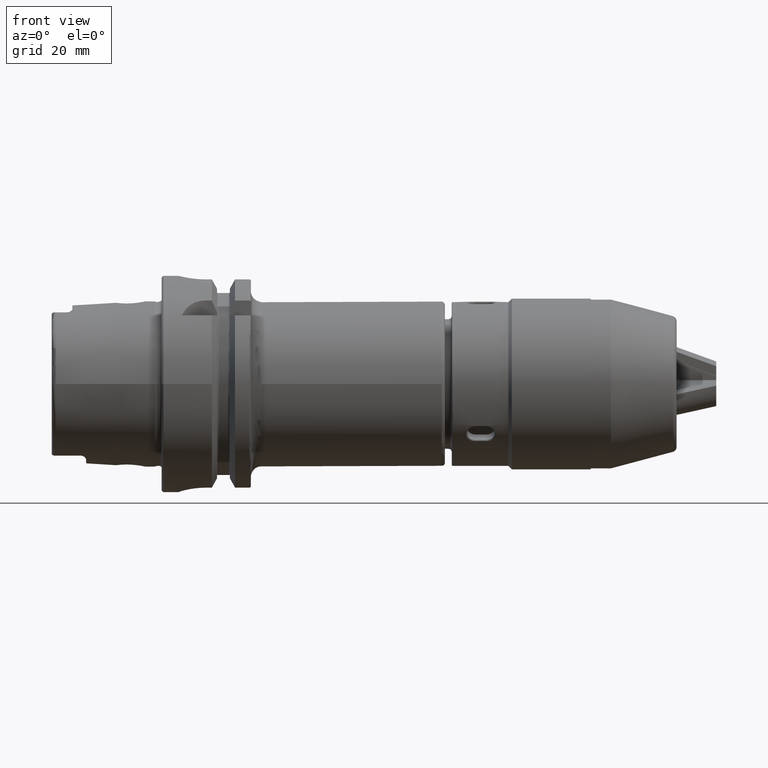
[diagram: clean part render]
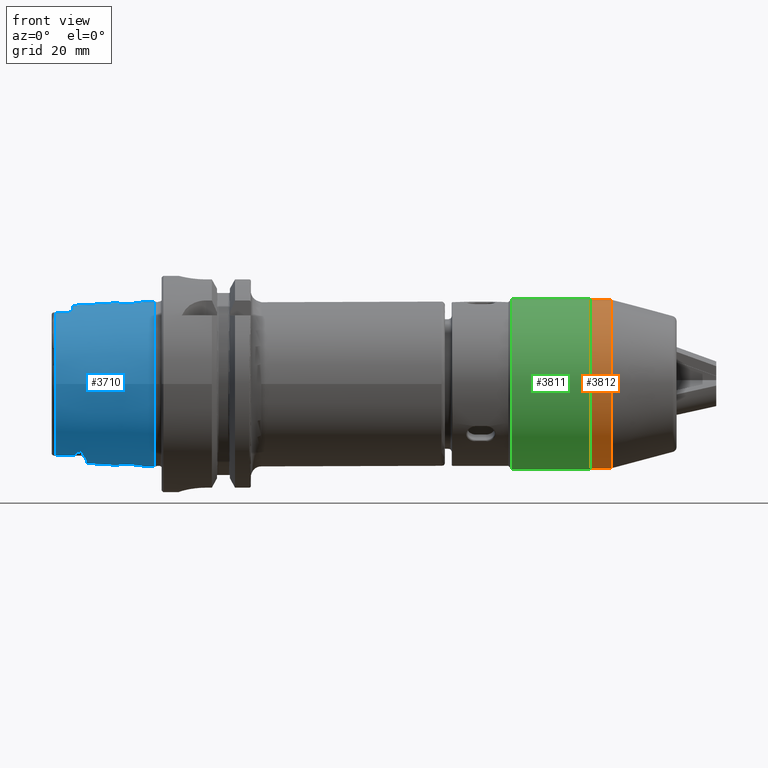
[diagram: same view with three faces highlighted in distinct colors, each labeled with its STEP entity id]
A machine part, front view with three faces highlighted in distinct colors.
Their STEP definitions:

[orange] entity #3812 — the highlighted cylindrical surface (bore or boss wall) has radius 24.7 mm, axis along (-1, -0, -0).
#174=CYLINDRICAL_SURFACE('',#4386,24.7);
#307=LINE('',#7338,#542);
#542=VECTOR('',#5308,24.7);
#890=FACE_OUTER_BOUND('',#1112,.T.);
#1112=EDGE_LOOP('',(#3256,#3257,#3258,#3259,#3260,#3261));
#1460=CIRCLE('',#4387,24.7);
#1461=CIRCLE('',#4388,24.7);
#1462=CIRCLE('',#4389,24.7);
#1463=CIRCLE('',#4390,24.7);
#1780=VERTEX_POINT('',#7333);
#1781=VERTEX_POINT('',#7334);
#1782=VERTEX_POINT('',#7337);
#1783=VERTEX_POINT('',#7339);
#2295=EDGE_CURVE('',#1780,#1781,#1460,.T.);
#2296=EDGE_CURVE('',#1781,#1780,#1461,.T.);
#2297=EDGE_CURVE('',#1781,#1782,#307,.T.);
#2298=EDGE_CURVE('',#1782,#1783,#1462,.T.);
#2299=EDGE_CURVE('',#1783,#1782,#1463,.T.);
#3256=ORIENTED_EDGE('',*,*,#2295,.F.);
#3257=ORIENTED_EDGE('',*,*,#2296,.F.);
#3258=ORIENTED_EDGE('',*,*,#2297,.T.);
#3259=ORIENTED_EDGE('',*,*,#2298,.T.);
#3260=ORIENTED_EDGE('',*,*,#2299,.T.);
#3261=ORIENTED_EDGE('',*,*,#2297,.F.);
#3812=ADVANCED_FACE('',(#890),#174,.T.);
#4386=AXIS2_PLACEMENT_3D('',#7332,#5302,#5303);
#4387=AXIS2_PLACEMENT_3D('',#7335,#5304,#5305);
#4388=AXIS2_PLACEMENT_3D('',#7336,#5306,#5307);
#4389=AXIS2_PLACEMENT_3D('',#7340,#5309,#5310);
#4390=AXIS2_PLACEMENT_3D('',#7341,#5311,#5312);
#5302=DIRECTION('center_axis',(9.33664374448044E-21,-1.,-2.19361169022002E-20));
#5303=DIRECTION('ref_axis',(4.32986979603811E-15,2.19361169022003E-20,-1.));
#5304=DIRECTION('center_axis',(9.33664374448044E-21,-1.,-2.19361169022002E-20));
#5305=DIRECTION('ref_axis',(4.32986979603811E-15,2.19361169022003E-20,-1.));
#5306=DIRECTION('center_axis',(9.33664374448044E-21,-1.,-2.19361169022002E-20));
#5307=DIRECTION('ref_axis',(4.32986979603811E-15,2.19361169022003E-20,-1.));
#5308=DIRECTION('',(-9.33664374448044E-21,1.,2.19361169022002E-20));
#5309=DIRECTION('center_axis',(9.33664374448044E-21,-1.,-2.19361169022002E-20));
#5310=DIRECTION('ref_axis',(4.32986979603811E-15,2.19361169022003E-20,-1.));
#5311=DIRECTION('center_axis',(9.33664374448044E-21,-1.,-2.19361169022002E-20));
#5312=DIRECTION('ref_axis',(4.32986979603811E-15,2.19361169022003E-20,-1.));
#7332=CARTESIAN_POINT('Origin',(0.,0.,0.));
#7333=CARTESIAN_POINT('',(1.06947559882691E-13,24.,-24.7));
#7334=CARTESIAN_POINT('',(-1.09972885635485E-13,24.,24.7));
#7335=CARTESIAN_POINT('Origin',(-2.24079450041367E-19,24.,5.26466805653975E-19));
#7336=CARTESIAN_POINT('Origin',(-2.24079450041367E-19,24.,5.26466805653975E-19));
#7337=CARTESIAN_POINT('',(-1.09972940721683E-13,29.9,24.7));
#7338=CARTESIAN_POINT('',(-1.09972661556035E-13,-5.41822087484347E-19,24.7));
#7339=CARTESIAN_POINT('',(1.06947504796493E-13,29.9,-24.7));
#7340=CARTESIAN_POINT('Origin',(-2.79165648036739E-19,29.9,6.55889895421925E-19));
#7341=CARTESIAN_POINT('Origin',(-2.79165648036739E-19,29.9,6.55889895421925E-19));

[blue] entity #3710 — the highlighted conical surface has half-angle 2.868 deg.
#70=(
BOUNDED_CURVE()
B_SPLINE_CURVE(2,(#6161,#6162,#6163),.UNSPECIFIED.,.F.,.F.)
B_SPLINE_CURVE_WITH_KNOTS((3,3),(0.409626932432081,0.704053423593105),
 .UNSPECIFIED.)
CURVE()
GEOMETRIC_REPRESENTATION_ITEM()
RATIONAL_B_SPLINE_CURVE((1.00336468859939,1.00336468859939,1.00162640098087))
REPRESENTATION_ITEM('')
);
#71=(
BOUNDED_CURVE()
B_SPLINE_CURVE(2,(#6228,#6229,#6230),.UNSPECIFIED.,.F.,.F.)
B_SPLINE_CURVE_WITH_KNOTS((3,3),(0.115200441271059,0.409626932432082),
 .UNSPECIFIED.)
CURVE()
GEOMETRIC_REPRESENTATION_ITEM()
RATIONAL_B_SPLINE_CURVE((1.00162640098087,1.00336468859939,1.00336468859939))
REPRESENTATION_ITEM('')
);
#101=CONICAL_SURFACE('',#4146,23.4974838444284,0.0500583457465973);
#123=FACE_BOUND('',#1003,.T.);
#124=FACE_BOUND('',#1004,.T.);
#224=LINE('',#6138,#459);
#459=VECTOR('',#4745,23.4974838444284);
#788=FACE_OUTER_BOUND('',#1002,.T.);
#1002=EDGE_LOOP('',(#2651,#2652,#2653,#2654,#2655,#2656,#2657,#2658,#2659,
#2660,#2661,#2662,#2663,#2664,#2665,#2666,#2667,#2668,#2669,#2670,#2671));
#1003=EDGE_LOOP('',(#2672));
#1004=EDGE_LOOP('',(#2673));
#1201=B_SPLINE_CURVE_WITH_KNOTS('',3,(#5900,#5901,#5902,#5903,#5904,#5905,
#5906,#5907,#5908,#5909,#5910,#5911,#5912,#5913,#5914,#5915,#5916,#5917),
 .UNSPECIFIED.,.F.,.F.,(4,2,2,2,2,2,2,2,4),(1.51539778880184,1.52261182847659,
1.52982586815134,1.54425394750083,1.60399250706955,1.66373106663827,1.83461413050895,
2.00549719437962,2.0934503680651),.UNSPECIFIED.);
#1203=B_SPLINE_CURVE_WITH_KNOTS('',3,(#5948,#5949,#5950,#5951,#5952,#5953,
#5954,#5955),.UNSPECIFIED.,.F.,.F.,(4,2,2,4),(1.77153596711132,1.83492838643131,
2.00584149209106,2.09371558288111),.UNSPECIFIED.);
#1204=B_SPLINE_CURVE_WITH_KNOTS('',3,(#5972,#5973,#5974,#5975,#5976,#5977,
#5978,#5979),.UNSPECIFIED.,.F.,.F.,(4,2,2,4),(0.937604543168422,1.02547863395848,
1.19639173961822,1.25978415893822),.UNSPECIFIED.);
#1208=B_SPLINE_CURVE_WITH_KNOTS('',3,(#6111,#6112,#6113,#6114,#6115,#6116,
#6117,#6118,#6119,#6120,#6121,#6122,#6123,#6124,#6125,#6126,#6127,#6128,
#6129,#6130,#6131),.UNSPECIFIED.,.T.,.F.,(4,1,1,1,1,1,1,1,1,1,1,1,1,1,1,
1,1,1,4),(-2.26557970640445,-2.10375258451842,-1.94192546263239,-1.86101190168937,
-1.78009834074636,-1.61827121886032,-1.45644409697429,-1.29461697508826,
-1.18673222716424,-1.07884747924022,-1.0249051052782,-0.970962731316194,
-0.755193235468151,-0.647308487544129,-0.485481365658097,-0.404567804715081,
-0.323654243772065,-0.161827121886032,0.),.UNSPECIFIED.);
#1209=B_SPLINE_CURVE_WITH_KNOTS('',3,(#6142,#6143,#6144,#6145,#6146,#6147,
#6148,#6149,#6150,#6151,#6152,#6153,#6154,#6155,#6156,#6157,#6158,#6159),
 .UNSPECIFIED.,.F.,.F.,(4,2,2,2,2,2,2,2,4),(0.937345209538582,1.02529838322405,
1.19618144709472,1.36706451096539,1.42680307053412,1.48654163010284,1.50096970945234,
1.50818374912708,1.51539778880183),.UNSPECIFIED.);
#1210=B_SPLINE_CURVE_WITH_KNOTS('',3,(#6165,#6166,#6167,#6168,#6169,#6170,
#6171,#6172,#6173,#6174,#6175,#6176,#6177,#6178,#6179,#6180,#6181,#6182),
 .UNSPECIFIED.,.F.,.F.,(4,2,2,2,2,2,2,2,4),(0.,0.0903555875079969,0.135533381261995,
0.180711175015994,0.191679253692351,0.19716329303053,0.202647332368709,
0.208141673454593,0.210684760739668),.UNSPECIFIED.);
#1211=B_SPLINE_CURVE_WITH_KNOTS('',3,(#6184,#6185,#6186,#6187,#6188,#6189,
#6190,#6191,#6192,#6193),.UNSPECIFIED.,.F.,.F.,(4,2,2,2,4),(0.278659319230644,
0.333918541832918,0.442805459609059,0.482035165304725,0.500954004489182),
 .UNSPECIFIED.);
#1212=B_SPLINE_CURVE_WITH_KNOTS('',3,(#6197,#6198,#6199,#6200,#6201,#6202,
#6203,#6204,#6205,#6206,#6207,#6208),.UNSPECIFIED.,.F.,.F.,(4,2,2,2,2,4),
(0.500954004487676,0.50386398744684,0.528331134037123,0.580812359186529,
0.712749669755937,0.726249722962502),.UNSPECIFIED.);
#1213=B_SPLINE_CURVE_WITH_KNOTS('',3,(#6210,#6211,#6212,#6213,#6214,#6215,
#6216,#6217,#6218,#6219,#6220,#6221,#6222,#6223,#6224,#6225,#6226,#6227),
 .UNSPECIFIED.,.F.,.F.,(4,2,2,2,2,2,2,2,4),(0.599581967500703,0.602125054785784,
0.607619395871668,0.613103435209847,0.618587474548027,0.629555553224386,
0.674733346978385,0.719911140732385,0.810266728240384),.UNSPECIFIED.);
#1214=B_SPLINE_CURVE_WITH_KNOTS('',3,(#6233,#6234,#6235,#6236,#6237,#6238,
#6239,#6240,#6241,#6242,#6243,#6244,#6245,#6246),.UNSPECIFIED.,.F.,.F.,
(4,2,2,2,2,2,4),(0.612787130114313,0.692070205833102,0.846913877835571,
0.923866042650838,0.97973233720279,1.02631946127952,1.05465853457734),
 .UNSPECIFIED.);
#1215=B_SPLINE_CURVE_WITH_KNOTS('',3,(#6249,#6250,#6251,#6252,#6253,#6254,
#6255,#6256,#6257,#6258,#6259,#6260,#6261,#6262),.UNSPECIFIED.,.F.,.F.,
(4,2,2,2,2,2,4),(0.413162960284885,0.443293122422243,0.485069563612126,
0.532728756474865,0.604908335246701,0.737193690325506,0.813919818316776),
 .UNSPECIFIED.);
#1216=B_SPLINE_CURVE_WITH_KNOTS('',3,(#6265,#6266,#6267,#6268,#6269,#6270,
#6271,#6272,#6273,#6274,#6275,#6276,#6277,#6278,#6279,#6280,#6281,#6282,
#6283,#6284),.UNSPECIFIED.,.T.,.F.,(4,1,1,1,1,1,1,1,1,1,1,1,1,1,1,1,1,4),
(-2.26557970640445,-2.10375258451842,-1.94192546263239,-1.78009834074636,
-1.61827121886032,-1.45644409697429,-1.37553053603127,-1.29461697508826,
-1.18673222716424,-1.07884747924022,-0.970962731316194,-0.755193235468151,
-0.647308487544129,-0.485481365658097,-0.404567804715081,-0.323654243772065,
-0.161827121886032,0.),.UNSPECIFIED.);
#1324=CIRCLE('',#4147,24.2204308617234);
#1325=CIRCLE('',#4148,24.2204308617234);
#1326=CIRCLE('',#4149,22.7745368271334);
#1327=CIRCLE('',#4150,23.2184268537074);
#1328=CIRCLE('',#4151,22.7745368271334);
#1329=CIRCLE('',#4152,23.0180260521042);
#1330=CIRCLE('',#4153,22.7745368271334);
#1576=VERTEX_POINT('',#5886);
#1577=VERTEX_POINT('',#5899);
#1583=VERTEX_POINT('',#5934);
#1584=VERTEX_POINT('',#5947);
#1590=VERTEX_POINT('',#5969);
#1591=VERTEX_POINT('',#5971);
#1594=VERTEX_POINT('',#6082);
#1597=VERTEX_POINT('',#6133);
#1598=VERTEX_POINT('',#6134);
#1599=VERTEX_POINT('',#6137);
#1600=VERTEX_POINT('',#6139);
#1601=VERTEX_POINT('',#6141);
#1602=VERTEX_POINT('',#6160);
#1603=VERTEX_POINT('',#6164);
#1604=VERTEX_POINT('',#6183);
#1605=VERTEX_POINT('',#6194);
#1606=VERTEX_POINT('',#6196);
#1607=VERTEX_POINT('',#6209);
#1608=VERTEX_POINT('',#6232);
#1609=VERTEX_POINT('',#6247);
#1610=VERTEX_POINT('',#6264);
#1986=EDGE_CURVE('',#1577,#1576,#1201,.T.);
#1996=EDGE_CURVE('',#1584,#1583,#1203,.T.);
#2004=EDGE_CURVE('',#1591,#1590,#1204,.T.);
#2012=EDGE_CURVE('',#1594,#1594,#1208,.T.);
#2013=EDGE_CURVE('',#1597,#1598,#1324,.T.);
#2014=EDGE_CURVE('',#1598,#1597,#1325,.T.);
#2015=EDGE_CURVE('',#1598,#1599,#224,.T.);
#2016=EDGE_CURVE('',#1599,#1600,#1326,.T.);
#2017=EDGE_CURVE('',#1600,#1601,#1209,.T.);
#2018=EDGE_CURVE('',#1601,#1602,#70,.T.);
#2019=EDGE_CURVE('',#1603,#1602,#1210,.T.);
#2020=EDGE_CURVE('',#1604,#1603,#1211,.T.);
#2021=EDGE_CURVE('',#1604,#1605,#1327,.T.);
#2022=EDGE_CURVE('',#1606,#1605,#1212,.T.);
#2023=EDGE_CURVE('',#1607,#1606,#1213,.T.);
#2024=EDGE_CURVE('',#1607,#1577,#71,.T.);
#2025=EDGE_CURVE('',#1576,#1591,#1328,.T.);
#2026=EDGE_CURVE('',#1608,#1590,#1214,.T.);
#2027=EDGE_CURVE('',#1608,#1609,#1329,.T.);
#2028=EDGE_CURVE('',#1584,#1609,#1215,.T.);
#2029=EDGE_CURVE('',#1583,#1599,#1330,.T.);
#2030=EDGE_CURVE('',#1610,#1610,#1216,.T.);
#2651=ORIENTED_EDGE('',*,*,#2013,.F.);
#2652=ORIENTED_EDGE('',*,*,#2014,.F.);
#2653=ORIENTED_EDGE('',*,*,#2015,.T.);
#2654=ORIENTED_EDGE('',*,*,#2016,.T.);
#2655=ORIENTED_EDGE('',*,*,#2017,.T.);
#2656=ORIENTED_EDGE('',*,*,#2018,.T.);
#2657=ORIENTED_EDGE('',*,*,#2019,.F.);
#2658=ORIENTED_EDGE('',*,*,#2020,.F.);
#2659=ORIENTED_EDGE('',*,*,#2021,.T.);
#2660=ORIENTED_EDGE('',*,*,#2022,.F.);
#2661=ORIENTED_EDGE('',*,*,#2023,.F.);
#2662=ORIENTED_EDGE('',*,*,#2024,.T.);
#2663=ORIENTED_EDGE('',*,*,#1986,.T.);
#2664=ORIENTED_EDGE('',*,*,#2025,.T.);
#2665=ORIENTED_EDGE('',*,*,#2004,.T.);
#2666=ORIENTED_EDGE('',*,*,#2026,.F.);
#2667=ORIENTED_EDGE('',*,*,#2027,.T.);
#2668=ORIENTED_EDGE('',*,*,#2028,.F.);
#2669=ORIENTED_EDGE('',*,*,#1996,.T.);
#2670=ORIENTED_EDGE('',*,*,#2029,.T.);
#2671=ORIENTED_EDGE('',*,*,#2015,.F.);
#2672=ORIENTED_EDGE('',*,*,#2030,.F.);
#2673=ORIENTED_EDGE('',*,*,#2012,.F.);
#3710=ADVANCED_FACE('',(#788,#123,#124),#101,.T.);
#4146=AXIS2_PLACEMENT_3D('',#6132,#4739,#4740);
#4147=AXIS2_PLACEMENT_3D('',#6135,#4741,#4742);
#4148=AXIS2_PLACEMENT_3D('',#6136,#4743,#4744);
#4149=AXIS2_PLACEMENT_3D('',#6140,#4746,#4747);
#4150=AXIS2_PLACEMENT_3D('',#6195,#4748,#4749);
#4151=AXIS2_PLACEMENT_3D('',#6231,#4750,#4751);
#4152=AXIS2_PLACEMENT_3D('',#6248,#4752,#4753);
#4153=AXIS2_PLACEMENT_3D('',#6263,#4754,#4755);
#4739=DIRECTION('center_axis',(1.,0.,0.));
#4740=DIRECTION('ref_axis',(0.,1.,0.));
#4741=DIRECTION('center_axis',(1.,0.,0.));
#4742=DIRECTION('ref_axis',(0.,0.,-1.));
#4743=DIRECTION('center_axis',(1.,0.,0.));
#4744=DIRECTION('ref_axis',(0.,0.,-1.));
#4745=DIRECTION('',(-0.998747342623037,0.0500374420151821,6.1278193201414E-18));
#4746=DIRECTION('center_axis',(1.,0.,0.));
#4747=DIRECTION('ref_axis',(0.,0.,-1.));
#4748=DIRECTION('center_axis',(1.,0.,0.));
#4749=DIRECTION('ref_axis',(0.,1.,0.));
#4750=DIRECTION('center_axis',(1.,0.,0.));
#4751=DIRECTION('ref_axis',(0.,0.,-1.));
#4752=DIRECTION('center_axis',(1.,0.,0.));
#4753=DIRECTION('ref_axis',(0.,1.,0.));
#4754=DIRECTION('center_axis',(1.,0.,0.));
#4755=DIRECTION('ref_axis',(0.,0.,-1.));
#5886=CARTESIAN_POINT('',(-30.8600449304182,9.1175788960984,-20.8698175067219));
#5899=CARTESIAN_POINT('',(-25.0978148584663,10.4556386714692,-20.5570425901345));
#5900=CARTESIAN_POINT('Ctrl Pts',(-25.0978148584663,10.4556386714692,-20.5570425901345));
#5901=CARTESIAN_POINT('Ctrl Pts',(-25.0978148584663,10.434204936409,-20.5679441285336));
#5902=CARTESIAN_POINT('Ctrl Pts',(-25.1030756340098,10.4135952575897,-20.5780886428205));
#5903=CARTESIAN_POINT('Ctrl Pts',(-25.1212840412595,10.3742534446523,-20.5969290505833));
#5904=CARTESIAN_POINT('Ctrl Pts',(-25.1342239230183,10.3555186194877,-20.605626813756));
#5905=CARTESIAN_POINT('Ctrl Pts',(-25.1803732229877,10.3024924958122,-20.6296329719333));
#5906=CARTESIAN_POINT('Ctrl Pts',(-25.2208246412482,10.2713306216733,-20.6428847988051));
#5907=CARTESIAN_POINT('Ctrl Pts',(-25.4220827984543,10.138547720478,-20.6974983203461));
#5908=CARTESIAN_POINT('Ctrl Pts',(-25.6226314158802,10.0671936374525,-20.7209199758995));
#5909=CARTESIAN_POINT('Ctrl Pts',(-26.0321916388999,9.93536599911188,-20.7617058242075));
#5910=CARTESIAN_POINT('Ctrl Pts',(-26.2430784477608,9.8799536310347,-20.7763753921414));
#5911=CARTESIAN_POINT('Ctrl Pts',(-26.9889879780946,9.69930871486834,-20.8204848534175));
#5912=CARTESIAN_POINT('Ctrl Pts',(-27.5600080230791,9.59491882494626,-20.8370744460606));
#5913=CARTESIAN_POINT('Ctrl Pts',(-28.7253632733501,9.40260250516234,-20.8605355436413));
#5914=CARTESIAN_POINT('Ctrl Pts',(-29.3200764392133,9.31683719872073,-20.8662835753638));
#5915=CARTESIAN_POINT('Ctrl Pts',(-30.2333885582946,9.19553638844306,-20.8699331931734));
#5916=CARTESIAN_POINT('Ctrl Pts',(-30.5458909643235,9.15590567779843,-20.8702489912062));
#5917=CARTESIAN_POINT('Ctrl Pts',(-30.8600449304182,9.11757889609839,-20.8698175067219));
#5934=CARTESIAN_POINT('',(-30.8600449304182,-9.1175788960984,20.8698175067219));
#5947=CARTESIAN_POINT('',(-27.5000000000755,-9.61067758640857,20.8329168403914));
#5948=CARTESIAN_POINT('Ctrl Pts',(-27.500000000078,-9.61067758642201,20.8329168403892));
#5949=CARTESIAN_POINT('Ctrl Pts',(-27.7125737548958,-9.57148784129481,20.8392673030342));
#5950=CARTESIAN_POINT('Ctrl Pts',(-27.9270578144772,-9.53434241390281,20.8444654011212));
#5951=CARTESIAN_POINT('Ctrl Pts',(-28.7259960474271,-9.40250589525003,20.8605443506117));
#5952=CARTESIAN_POINT('Ctrl Pts',(-29.3208153495341,-9.3167323629879,20.8662898636256));
#5953=CARTESIAN_POINT('Ctrl Pts',(-30.2339565561897,-9.19546438357122,20.8699337533607));
#5954=CARTESIAN_POINT('Ctrl Pts',(-30.5461763429502,-9.15587086160794,20.8702485992441));
#5955=CARTESIAN_POINT('Ctrl Pts',(-30.8600449304182,-9.11757889609839,20.8698175067219));
#5969=CARTESIAN_POINT('',(-27.5000000000755,9.61067758640857,20.8329168403914));
#5971=CARTESIAN_POINT('',(-30.8600449304182,9.1175788960984,20.8698175067219));
#5972=CARTESIAN_POINT('Ctrl Pts',(-30.8600449304182,9.11757889609839,20.8698175067219));
#5973=CARTESIAN_POINT('Ctrl Pts',(-30.5461763429502,9.15587086160794,20.8702485992441));
#5974=CARTESIAN_POINT('Ctrl Pts',(-30.2339565561898,9.1954643835712,20.8699337533607));
#5975=CARTESIAN_POINT('Ctrl Pts',(-29.3208153495341,9.31673236298789,20.8662898636256));
#5976=CARTESIAN_POINT('Ctrl Pts',(-28.7259960474271,9.40250589525004,20.8605443506117));
#5977=CARTESIAN_POINT('Ctrl Pts',(-27.9270578144772,9.53434241390281,20.8444654011213));
#5978=CARTESIAN_POINT('Ctrl Pts',(-27.7125737548958,9.57148784129481,20.8392673030342));
#5979=CARTESIAN_POINT('Ctrl Pts',(-27.500000000078,9.61067758642201,20.8329168403892));
#6082=CARTESIAN_POINT('',(-9.02925407423461,4.24282684078987,-23.4881339907642));
#6111=CARTESIAN_POINT('Ctrl Pts',(-9.02925407423461,4.24282684078987,-23.4881339907642));
#6112=CARTESIAN_POINT('Ctrl Pts',(-8.41794937729803,4.24763962021184,-23.5183867686952));
#6113=CARTESIAN_POINT('Ctrl Pts',(-7.09732684210524,3.96167042797061,-23.6399991166518));
#6114=CARTESIAN_POINT('Ctrl Pts',(-5.85862556428085,2.97381592636213,-23.8514770065909));
#6115=CARTESIAN_POINT('Ctrl Pts',(-5.16091834655909,1.90904489936624,-23.9915213036756));
#6116=CARTESIAN_POINT('Ctrl Pts',(-4.7192295801593,0.668721272737721,-24.0894047094142));
#6117=CARTESIAN_POINT('Ctrl Pts',(-4.69847323329922,-0.899439652325339,
-24.0935544797084));
#6118=CARTESIAN_POINT('Ctrl Pts',(-5.55540783240537,-2.73292283801133,-23.9044866287245));
#6119=CARTESIAN_POINT('Ctrl Pts',(-6.84099834624705,-3.76948663147273,-23.6816666687589));
#6120=CARTESIAN_POINT('Ctrl Pts',(-8.32233390618421,-4.25559455937192,-23.5222287213409));
#6121=CARTESIAN_POINT('Ctrl Pts',(-9.34887268913082,-4.25610778302827,-23.4687535956096));
#6122=CARTESIAN_POINT('Ctrl Pts',(-10.1915677140488,-4.08658685046146,-23.4566376659774));
#6123=CARTESIAN_POINT('Ctrl Pts',(-11.420207255051,-3.61575321059654,-23.4734883841045));
#6124=CARTESIAN_POINT('Ctrl Pts',(-12.5283545007694,-2.6317274185749,-23.5686081216677));
#6125=CARTESIAN_POINT('Ctrl Pts',(-13.2832721623887,-0.775397661242597,
-23.6605550548532));
#6126=CARTESIAN_POINT('Ctrl Pts',(-13.2938327740737,0.570583952086489,-23.6623781319302));
#6127=CARTESIAN_POINT('Ctrl Pts',(-12.8809642347665,1.82501152311243,-23.6106605418293));
#6128=CARTESIAN_POINT('Ctrl Pts',(-12.1975836305622,2.91182012527324,-23.5396565922848));
#6129=CARTESIAN_POINT('Ctrl Pts',(-10.9677588719499,3.92910839902513,-23.4490545719123));
#6130=CARTESIAN_POINT('Ctrl Pts',(-9.64055877117116,4.23801406136791,-23.4578812128331));
#6131=CARTESIAN_POINT('Ctrl Pts',(-9.02925407423461,4.24282684078987,-23.4881339907642));
#6132=CARTESIAN_POINT('Origin',(-16.4300224652091,0.,0.));
#6133=CARTESIAN_POINT('',(-2.,24.2204308617234,0.));
#6134=CARTESIAN_POINT('',(-2.,-24.2204308617234,-2.96614731287794E-15));
#6135=CARTESIAN_POINT('Origin',(-2.,0.,0.));
#6136=CARTESIAN_POINT('Origin',(-2.,0.,0.));
#6137=CARTESIAN_POINT('',(-30.8600449304182,-22.7745368271334,-2.78907636274124E-15));
#6138=CARTESIAN_POINT('',(-16.4300224652091,-23.4974838444284,-2.87761183780959E-15));
#6139=CARTESIAN_POINT('',(-30.8600449304182,-9.1175788960984,-20.8698175067219));
#6140=CARTESIAN_POINT('Origin',(-30.8600449304182,0.,0.));
#6141=CARTESIAN_POINT('',(-25.0978148584663,-10.4556386714692,-20.5570425901345));
#6142=CARTESIAN_POINT('Ctrl Pts',(-30.8600449304182,-9.11757889609839,-20.8698175067219));
#6143=CARTESIAN_POINT('Ctrl Pts',(-30.5458909643235,-9.15590567779842,-20.8702489912062));
#6144=CARTESIAN_POINT('Ctrl Pts',(-30.2333885582947,-9.19553638844306,-20.8699331931734));
#6145=CARTESIAN_POINT('Ctrl Pts',(-29.3200764392134,-9.31683719872071,-20.8662835753638));
#6146=CARTESIAN_POINT('Ctrl Pts',(-28.7253632733503,-9.40260250516231,-20.8605355436413));
#6147=CARTESIAN_POINT('Ctrl Pts',(-27.5600080230793,-9.59491882494623,-20.8370744460606));
#6148=CARTESIAN_POINT('Ctrl Pts',(-26.9889879780948,-9.69930871486833,-20.8204848534175));
#6149=CARTESIAN_POINT('Ctrl Pts',(-26.243078447761,-9.87995363103469,-20.7763753921414));
#6150=CARTESIAN_POINT('Ctrl Pts',(-26.0321916389,-9.93536599911181,-20.7617058242075));
#6151=CARTESIAN_POINT('Ctrl Pts',(-25.6226314158803,-10.0671936374524,-20.7209199758996));
#6152=CARTESIAN_POINT('Ctrl Pts',(-25.4220827984544,-10.138547720478,-20.6974983203461));
#6153=CARTESIAN_POINT('Ctrl Pts',(-25.2208246412483,-10.2713306216733,-20.6428847988051));
#6154=CARTESIAN_POINT('Ctrl Pts',(-25.1803732229877,-10.3024924958121,-20.6296329719333));
#6155=CARTESIAN_POINT('Ctrl Pts',(-25.1342239230183,-10.3555186194877,-20.6056268137561));
#6156=CARTESIAN_POINT('Ctrl Pts',(-25.1212840412597,-10.3742534446523,-20.5969290505833));
#6157=CARTESIAN_POINT('Ctrl Pts',(-25.10307563401,-10.4135952575897,-20.5780886428205));
#6158=CARTESIAN_POINT('Ctrl Pts',(-25.0978148584663,-10.434204936409,-20.5679441285336));
#6159=CARTESIAN_POINT('Ctrl Pts',(-25.0978148584663,-10.4556386714692,-20.5570425901345));
#6160=CARTESIAN_POINT('',(-23.5,-12.1698923613067,-19.6851459107563));
#6161=CARTESIAN_POINT('Ctrl Pts',(-25.0978148584663,-10.4556386714692,-20.5570425901345));
#6162=CARTESIAN_POINT('Ctrl Pts',(-25.0978148584663,-11.3112805797553,-20.1218495128239));
#6163=CARTESIAN_POINT('Ctrl Pts',(-23.5,-12.1698923613067,-19.6851459107563));
#6164=CARTESIAN_POINT('',(-22.9409864229987,-10.5046262057925,-20.6533579718259));
#6165=CARTESIAN_POINT('Ctrl Pts',(-22.9409864229987,-10.5046262057925,-20.6533579718259));
#6166=CARTESIAN_POINT('Ctrl Pts',(-22.9409864229987,-10.7730829666602,-20.516816595398));
#6167=CARTESIAN_POINT('Ctrl Pts',(-22.9574206817668,-11.0623666606509,-20.3616089931375));
#6168=CARTESIAN_POINT('Ctrl Pts',(-23.0214299513488,-11.4761009466796,-20.1257517714531));
#6169=CARTESIAN_POINT('Ctrl Pts',(-23.0491283200772,-11.6099871059181,-20.0471312410654));
#6170=CARTESIAN_POINT('Ctrl Pts',(-23.1253497318037,-11.8635092488451,-19.8937049027563));
#6171=CARTESIAN_POINT('Ctrl Pts',(-23.1681553584466,-11.9845149642791,-19.8183788237048));
#6172=CARTESIAN_POINT('Ctrl Pts',(-23.2720205567489,-12.1145084587468,-19.7327054731899));
#6173=CARTESIAN_POINT('Ctrl Pts',(-23.2970638659452,-12.1405120406692,-19.7152346163683));
#6174=CARTESIAN_POINT('Ctrl Pts',(-23.340824213029,-12.1694983830269,-19.6947680043585));
#6175=CARTESIAN_POINT('Ctrl Pts',(-23.3564336502031,-12.1775072041959,-19.6888951705931));
#6176=CARTESIAN_POINT('Ctrl Pts',(-23.3894992563298,-12.1884299822762,-19.6801867490419));
#6177=CARTESIAN_POINT('Ctrl Pts',(-23.4069516148396,-12.191352087042,-19.6773469156348));
#6178=CARTESIAN_POINT('Ctrl Pts',(-23.4435003757557,-12.1903876993059,-19.675790353909));
#6179=CARTESIAN_POINT('Ctrl Pts',(-23.4609883159786,-12.1865341044229,-19.6771480362853));
#6180=CARTESIAN_POINT('Ctrl Pts',(-23.4852443648865,-12.1772664781571,-19.6814547071094));
#6181=CARTESIAN_POINT('Ctrl Pts',(-23.4927247382132,-12.1738018414638,-19.6831574869965));
#6182=CARTESIAN_POINT('Ctrl Pts',(-23.5,-12.1698923613067,-19.6851459107563));
#6183=CARTESIAN_POINT('',(-22.,-7.4031250016059,-22.0065691504051));
#6184=CARTESIAN_POINT('Ctrl Pts',(-22.,-7.4031250016064,-22.0065691504049));
#6185=CARTESIAN_POINT('Ctrl Pts',(-22.,-7.64154328791244,-21.9263639914758));
#6186=CARTESIAN_POINT('Ctrl Pts',(-22.0282316966018,-7.93106690411137,-21.8234540350138));
#6187=CARTESIAN_POINT('Ctrl Pts',(-22.2899989017396,-8.94727995671646,-21.421774019244));
#6188=CARTESIAN_POINT('Ctrl Pts',(-22.60775210997,-9.49253651928731,-21.1610368486918));
#6189=CARTESIAN_POINT('Ctrl Pts',(-22.8524785496019,-10.0580168739411,-20.8800894739587));
#6190=CARTESIAN_POINT('Ctrl Pts',(-22.8997008986804,-10.1907353571143,-20.8128334005565));
#6191=CARTESIAN_POINT('Ctrl Pts',(-22.9350020039233,-10.381785274935,-20.7158310407179));
#6192=CARTESIAN_POINT('Ctrl Pts',(-22.9409864229987,-10.4428555441716,-20.6847755123391));
#6193=CARTESIAN_POINT('Ctrl Pts',(-22.9409864229987,-10.5046262057925,-20.6533579718259));
#6194=CARTESIAN_POINT('',(-22.,7.4031250016059,-22.0065691504051));
#6195=CARTESIAN_POINT('Origin',(-22.,0.,0.));
#6196=CARTESIAN_POINT('',(-22.9409864229987,10.5046262057925,-20.6533579718259));
#6197=CARTESIAN_POINT('Ctrl Pts',(-22.9409864229987,10.5046262057925,-20.6533579718259));
#6198=CARTESIAN_POINT('Ctrl Pts',(-22.9409864229987,10.4951250111927,-20.6581904304467));
#6199=CARTESIAN_POINT('Ctrl Pts',(-22.9408450644905,10.4856070684351,-20.6630311043921));
#6200=CARTESIAN_POINT('Ctrl Pts',(-22.9381719760295,10.3958439048842,-20.7086800932502));
#6201=CARTESIAN_POINT('Ctrl Pts',(-22.9258072553349,10.3185989460598,-20.747952822378));
#6202=CARTESIAN_POINT('Ctrl Pts',(-22.8649803787077,10.0769327863764,-20.8704196245159));
#6203=CARTESIAN_POINT('Ctrl Pts',(-22.7887679321626,9.90306802919886,-20.9581178536208));
#6204=CARTESIAN_POINT('Ctrl Pts',(-22.4484945404157,9.18505116717875,-21.3075925571443));
#6205=CARTESIAN_POINT('Ctrl Pts',(-22.0746753976002,8.47121172659649,-21.631485700585));
#6206=CARTESIAN_POINT('Ctrl Pts',(-22.0031617045067,7.56447021316982,-21.9516456669287));
#6207=CARTESIAN_POINT('Ctrl Pts',(-22.,7.48262387019776,-21.9798253150689));
#6208=CARTESIAN_POINT('Ctrl Pts',(-22.,7.40312500160694,-22.0065691504047));
#6209=CARTESIAN_POINT('',(-23.5,12.1698923613067,-19.6851459107563));
#6210=CARTESIAN_POINT('Ctrl Pts',(-23.5,12.1698923613067,-19.6851459107563));
#6211=CARTESIAN_POINT('Ctrl Pts',(-23.4927247382132,12.1738018414639,-19.6831574869965));
#6212=CARTESIAN_POINT('Ctrl Pts',(-23.4852443648865,12.1772664781571,-19.6814547071094));
#6213=CARTESIAN_POINT('Ctrl Pts',(-23.4609883159786,12.1865341044229,-19.6771480362853));
#6214=CARTESIAN_POINT('Ctrl Pts',(-23.4435003757557,12.190387699306,-19.6757903539089));
#6215=CARTESIAN_POINT('Ctrl Pts',(-23.4069516148396,12.1913520870421,-19.6773469156348));
#6216=CARTESIAN_POINT('Ctrl Pts',(-23.3894992563298,12.1884299822762,-19.6801867490419));
#6217=CARTESIAN_POINT('Ctrl Pts',(-23.3564336502031,12.1775072041959,-19.688895170593));
#6218=CARTESIAN_POINT('Ctrl Pts',(-23.340824213029,12.169498383027,-19.6947680043585));
#6219=CARTESIAN_POINT('Ctrl Pts',(-23.2970638659452,12.1405120406693,-19.7152346163683));
#6220=CARTESIAN_POINT('Ctrl Pts',(-23.2720205567489,12.1145084587468,-19.7327054731899));
#6221=CARTESIAN_POINT('Ctrl Pts',(-23.1681553584466,11.9845149642791,-19.8183788237047));
#6222=CARTESIAN_POINT('Ctrl Pts',(-23.1253497318037,11.8635092488451,-19.8937049027563));
#6223=CARTESIAN_POINT('Ctrl Pts',(-23.0491283200772,11.6099871059182,-20.0471312410654));
#6224=CARTESIAN_POINT('Ctrl Pts',(-23.0214299513488,11.4761009466796,-20.1257517714531));
#6225=CARTESIAN_POINT('Ctrl Pts',(-22.9574206817668,11.0623666606509,-20.3616089931375));
#6226=CARTESIAN_POINT('Ctrl Pts',(-22.9409864229987,10.7730829666602,-20.516816595398));
#6227=CARTESIAN_POINT('Ctrl Pts',(-22.9409864229987,10.5046262057925,-20.6533579718259));
#6228=CARTESIAN_POINT('Ctrl Pts',(-23.5,12.1698923613067,-19.6851459107563));
#6229=CARTESIAN_POINT('Ctrl Pts',(-25.0978148584663,11.3112805797553,-20.1218495128239));
#6230=CARTESIAN_POINT('Ctrl Pts',(-25.0978148584662,10.4556386714692,-20.5570425901345));
#6231=CARTESIAN_POINT('Origin',(-30.8600449304182,0.,0.));
#6232=CARTESIAN_POINT('',(-26.,7.14127219004964,21.8822246319466));
#6233=CARTESIAN_POINT('Ctrl Pts',(-26.,7.14127219004961,21.8822246319466));
#6234=CARTESIAN_POINT('Ctrl Pts',(-26.,7.38735946023371,21.801913959314));
#6235=CARTESIAN_POINT('Ctrl Pts',(-26.033972788753,7.63482296419265,21.7146832850108));
#6236=CARTESIAN_POINT('Ctrl Pts',(-26.2194423861809,8.34889404999889,21.4446815988103));
#6237=CARTESIAN_POINT('Ctrl Pts',(-26.4428793547878,8.75952114583654,21.2645357982171));
#6238=CARTESIAN_POINT('Ctrl Pts',(-26.7590254549197,9.19092879202869,21.0625769757814));
#6239=CARTESIAN_POINT('Ctrl Pts',(-26.8729708291721,9.32104212441475,20.9987774802421));
#6240=CARTESIAN_POINT('Ctrl Pts',(-27.0716948778125,9.49280512119961,20.9106159819251));
#6241=CARTESIAN_POINT('Ctrl Pts',(-27.144806553738,9.53932652154805,20.8852782118319));
#6242=CARTESIAN_POINT('Ctrl Pts',(-27.2637975599135,9.59417850538166,20.8535668796639));
#6243=CARTESIAN_POINT('Ctrl Pts',(-27.322222387454,9.61219549867679,20.8420263003947));
#6244=CARTESIAN_POINT('Ctrl Pts',(-27.4236635149584,9.61988157707407,20.8328813745288));
#6245=CARTESIAN_POINT('Ctrl Pts',(-27.4617925463603,9.61772144927266,20.8317754247499));
#6246=CARTESIAN_POINT('Ctrl Pts',(-27.5000000000779,9.61067758642203,20.8329168403892));
#6247=CARTESIAN_POINT('',(-26.,-7.14127219004964,21.8822246319466));
#6248=CARTESIAN_POINT('Origin',(-26.,0.,0.));
#6249=CARTESIAN_POINT('Ctrl Pts',(-27.500000000078,-9.610677586422,20.8329168403892));
#6250=CARTESIAN_POINT('Ctrl Pts',(-27.4634308025005,-9.61741942308555,20.8318243662782));
#6251=CARTESIAN_POINT('Ctrl Pts',(-27.4260889661871,-9.61985292316152,20.8327607188551));
#6252=CARTESIAN_POINT('Ctrl Pts',(-27.3343377981765,-9.61339298685805,20.8408051456548));
#6253=CARTESIAN_POINT('Ctrl Pts',(-27.2828394544385,-9.59996378018902,20.8498476845684));
#6254=CARTESIAN_POINT('Ctrl Pts',(-27.1765640574038,-9.55615724159004,20.8758218933212));
#6255=CARTESIAN_POINT('Ctrl Pts',(-27.111584300389,-9.51976030908576,20.8961199655304));
#6256=CARTESIAN_POINT('Ctrl Pts',(-26.9153060284285,-9.36478934458731,20.9769473005223));
#6257=CARTESIAN_POINT('Ctrl Pts',(-26.7955937204007,-9.23492374831594,21.0413520243865));
#6258=CARTESIAN_POINT('Ctrl Pts',(-26.4809422997755,-8.82026009617074,21.2370375105362));
#6259=CARTESIAN_POINT('Ctrl Pts',(-26.2539798154924,-8.42841535117176,21.4117405279022));
#6260=CARTESIAN_POINT('Ctrl Pts',(-26.0395031937781,-7.68065048502185,21.6986739773255));
#6261=CARTESIAN_POINT('Ctrl Pts',(-26.,-7.40668123592282,21.7956082905937));
#6262=CARTESIAN_POINT('Ctrl Pts',(-26.,-7.14127219004964,21.8822246319466));
#6263=CARTESIAN_POINT('Origin',(-30.8600449304182,0.,0.));
#6264=CARTESIAN_POINT('',(-9.0292540742346,4.24282684078987,23.4881339907642));
#6265=CARTESIAN_POINT('Ctrl Pts',(-9.0292540742346,4.24282684078987,23.4881339907642));
#6266=CARTESIAN_POINT('Ctrl Pts',(-9.64055877117116,4.23801406136791,23.4578812128331));
#6267=CARTESIAN_POINT('Ctrl Pts',(-10.9638730408259,3.9179106610358,23.4490004091406));
#6268=CARTESIAN_POINT('Ctrl Pts',(-12.4526262699356,2.72858679704118,23.5583200576491));
#6269=CARTESIAN_POINT('Ctrl Pts',(-13.2979994443229,0.897319571652653,23.6626290479033));
#6270=CARTESIAN_POINT('Ctrl Pts',(-13.2816532621822,-0.989914262387046,
23.6604543947658));
#6271=CARTESIAN_POINT('Ctrl Pts',(-12.5283475509394,-2.5126406940463,23.5683027954165));
#6272=CARTESIAN_POINT('Ctrl Pts',(-11.644644056388,-3.36168995288758,23.5000429155352));
#6273=CARTESIAN_POINT('Ctrl Pts',(-10.7211638191248,-3.94108956594417,23.4566895241693));
#6274=CARTESIAN_POINT('Ctrl Pts',(-9.5521895652502,-4.26473162662384,23.4572260144777));
#6275=CARTESIAN_POINT('Ctrl Pts',(-8.32320534640719,-4.25325948558034,23.5226080715555));
#6276=CARTESIAN_POINT('Ctrl Pts',(-6.63489792710575,-3.70316169352032,23.7041145541078));
#6277=CARTESIAN_POINT('Ctrl Pts',(-5.41440976031321,-2.55125573233756,23.9362004351798));
#6278=CARTESIAN_POINT('Ctrl Pts',(-4.7000748090091,-0.684877735486038,24.0933895661358));
#6279=CARTESIAN_POINT('Ctrl Pts',(-4.71970772693147,0.665159656526803,24.0893124072651));
#6280=CARTESIAN_POINT('Ctrl Pts',(-5.15905183263974,1.91098326290444,23.9917942104486));
#6281=CARTESIAN_POINT('Ctrl Pts',(-5.85767811305676,2.97386590658898,23.8516162416426));
#6282=CARTESIAN_POINT('Ctrl Pts',(-7.09677486505754,3.96242760844406,23.6400830913262));
#6283=CARTESIAN_POINT('Ctrl Pts',(-8.41794937729803,4.24763962021184,23.5183867686952));
#6284=CARTESIAN_POINT('Ctrl Pts',(-9.0292540742346,4.24282684078988,23.4881339907642));

[green] entity #3811 — the highlighted cylindrical surface (bore or boss wall) has radius 25 mm, axis along (-1, -0, -0).
#173=CYLINDRICAL_SURFACE('',#4383,25.);
#306=LINE('',#7328,#541);
#541=VECTOR('',#5297,25.);
#889=FACE_OUTER_BOUND('',#1111,.T.);
#1111=EDGE_LOOP('',(#3250,#3251,#3252,#3253,#3254,#3255));
#1454=CIRCLE('',#4379,25.);
#1457=CIRCLE('',#4382,25.);
#1458=CIRCLE('',#4384,25.);
#1459=CIRCLE('',#4385,25.);
#1774=VERTEX_POINT('',#7317);
#1775=VERTEX_POINT('',#7318);
#1778=VERTEX_POINT('',#7327);
#1779=VERTEX_POINT('',#7329);
#2287=EDGE_CURVE('',#1774,#1775,#1454,.T.);
#2291=EDGE_CURVE('',#1775,#1774,#1457,.T.);
#2292=EDGE_CURVE('',#1774,#1778,#306,.T.);
#2293=EDGE_CURVE('',#1778,#1779,#1458,.T.);
#2294=EDGE_CURVE('',#1779,#1778,#1459,.T.);
#3250=ORIENTED_EDGE('',*,*,#2287,.F.);
#3251=ORIENTED_EDGE('',*,*,#2292,.T.);
#3252=ORIENTED_EDGE('',*,*,#2293,.T.);
#3253=ORIENTED_EDGE('',*,*,#2294,.T.);
#3254=ORIENTED_EDGE('',*,*,#2292,.F.);
#3255=ORIENTED_EDGE('',*,*,#2291,.F.);
#3811=ADVANCED_FACE('',(#889),#173,.T.);
#4379=AXIS2_PLACEMENT_3D('',#7319,#5286,#5287);
#4382=AXIS2_PLACEMENT_3D('',#7325,#5293,#5294);
#4383=AXIS2_PLACEMENT_3D('',#7326,#5295,#5296);
#4384=AXIS2_PLACEMENT_3D('',#7330,#5298,#5299);
#4385=AXIS2_PLACEMENT_3D('',#7331,#5300,#5301);
#5286=DIRECTION('center_axis',(9.33664374448044E-21,-1.,-2.19361169022002E-20));
#5287=DIRECTION('ref_axis',(4.32986979603811E-15,2.19361169022003E-20,-1.));
#5293=DIRECTION('center_axis',(9.33664374448044E-21,-1.,-2.19361169022002E-20));
#5294=DIRECTION('ref_axis',(4.32986979603811E-15,2.19361169022003E-20,-1.));
#5295=DIRECTION('center_axis',(9.33664374448044E-21,-1.,-2.19361169022002E-20));
#5296=DIRECTION('ref_axis',(4.32986979603811E-15,2.19361169022003E-20,-1.));
#5297=DIRECTION('',(-9.33664374448044E-21,1.,2.19361169022002E-20));
#5298=DIRECTION('center_axis',(9.33664374448044E-21,-1.,-2.19361169022002E-20));
#5299=DIRECTION('ref_axis',(4.32986979603811E-15,2.19361169022003E-20,-1.));
#5300=DIRECTION('center_axis',(9.33664374448044E-21,-1.,-2.19361169022002E-20));
#5301=DIRECTION('ref_axis',(4.32986979603811E-15,2.19361169022003E-20,-1.));
#7317=CARTESIAN_POINT('',(-1.05185244611131E-13,1.,25.));
#7318=CARTESIAN_POINT('',(1.05185118566441E-13,1.,-25.));
#7319=CARTESIAN_POINT('Origin',(-9.33664381848918E-21,1.,2.19361169330638E-20));
#7325=CARTESIAN_POINT('Origin',(-9.33664381848918E-21,1.,2.19361169330638E-20));
#7326=CARTESIAN_POINT('Origin',(0.,0.,0.));
#7327=CARTESIAN_POINT('',(-1.11308585978271E-13,24.,25.));
#7328=CARTESIAN_POINT('',(-1.11308361898821E-13,-5.48402922555007E-19,25.));
#7329=CARTESIAN_POINT('',(1.08246520821503E-13,24.,-25.));
#7330=CARTESIAN_POINT('Origin',(-2.24079450041367E-19,24.,5.26466805653975E-19));
#7331=CARTESIAN_POINT('Origin',(-2.24079450041367E-19,24.,5.26466805653975E-19));